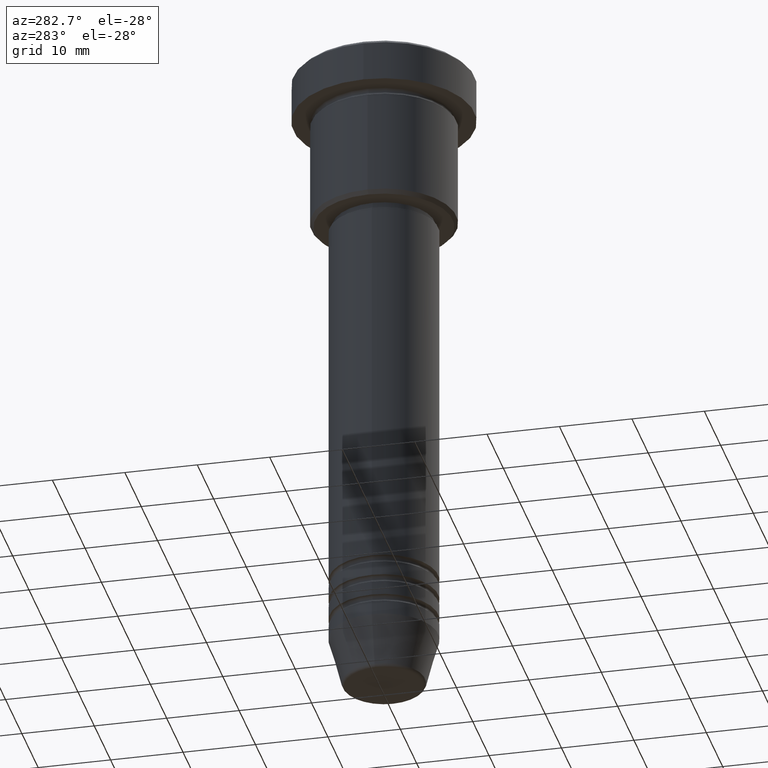
[diagram: clean part render]
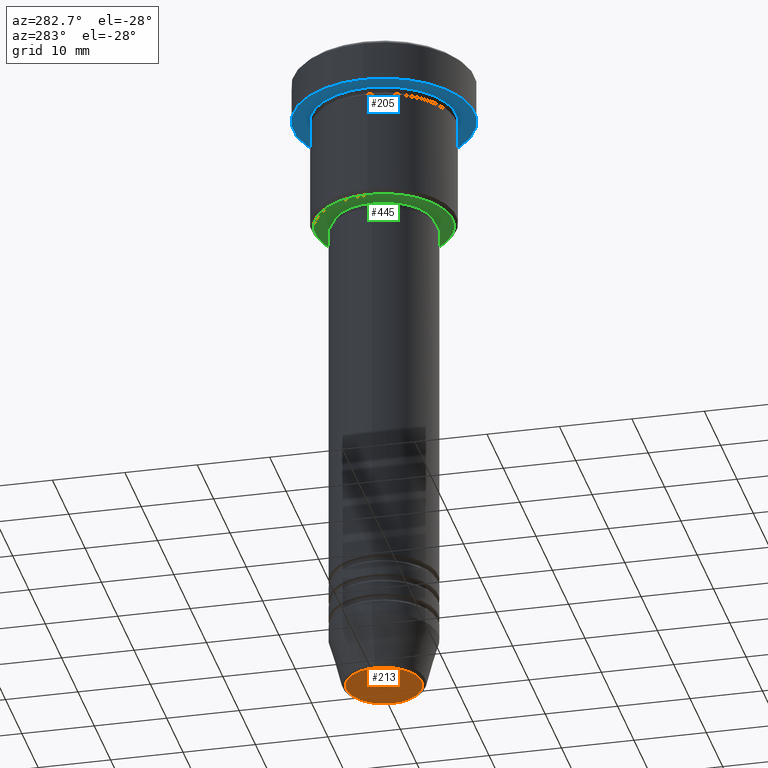
[diagram: same view with three faces highlighted in distinct colors, each labeled with its STEP entity id]
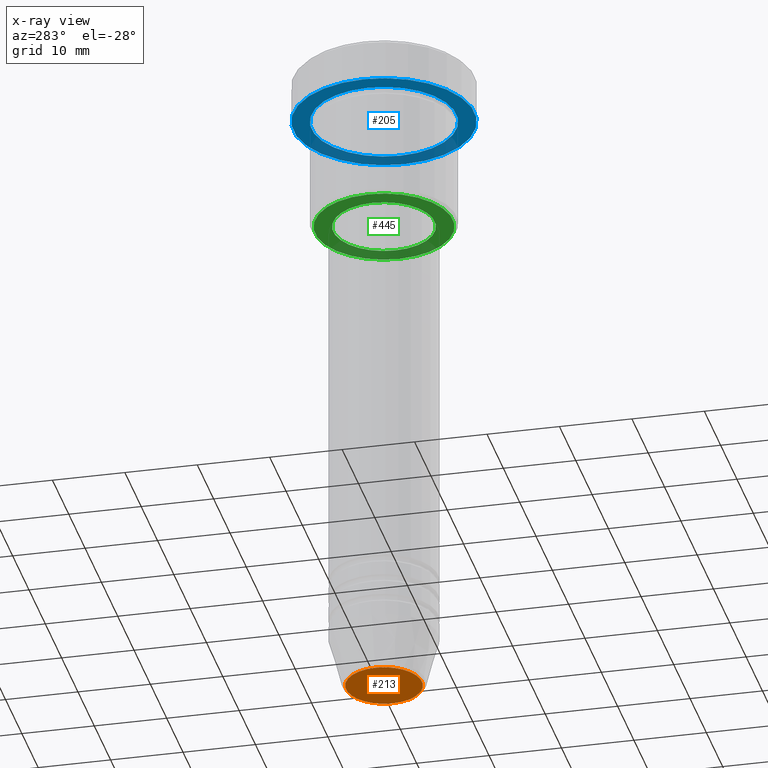
[diagram: x-ray of the same camera — body ghosted, the three highlighted faces saturated]
A machine part, auxiliary view with three faces highlighted in distinct colors.
The next image is the same camera in x-ray (body ghosted, the three faces saturated) — at least one of them is partly hidden behind the body in this view.
Their STEP definitions:

[orange] entity #213 — the highlighted planar face has unit normal (0, -0, 1).
#117 = EDGE_CURVE ( 'NONE', #859, #849, #162, .T. ) ;
#153 = DIRECTION ( 'NONE',  ( 0.000000000000000000, 0.000000000000000000, -1.000000000000000000 ) ) ;
#162 = CIRCLE ( 'NONE', #1095, 5.240692158992654726 ) ;
#213 = ADVANCED_FACE ( 'NONE', ( #1158 ), #1062, .F. ) ;
#253 = DIRECTION ( 'NONE',  ( 0.000000000000000000, 0.000000000000000000, -1.000000000000000000 ) ) ;
#347 = CARTESIAN_POINT ( 'NONE',  ( 5.240692158992654726, 0.000000000000000000, -92.00000000000000000 ) ) ;
#357 = CARTESIAN_POINT ( 'NONE',  ( 0.000000000000000000, 0.000000000000000000, -92.00000000000000000 ) ) ;
#413 = AXIS2_PLACEMENT_3D ( 'NONE', #902, #1078, #718 ) ;
#718 = DIRECTION ( 'NONE',  ( 1.000000000000000000, 0.000000000000000000, 0.000000000000000000 ) ) ;
#719 = CARTESIAN_POINT ( 'NONE',  ( -5.240692158992654726, 6.713726370671654515E-16, -92.00000000000000000 ) ) ;
#781 = ORIENTED_EDGE ( 'NONE', *, *, #826, .T. ) ;
#800 = DIRECTION ( 'NONE',  ( 1.000000000000000000, 0.000000000000000000, 0.000000000000000000 ) ) ;
#826 = EDGE_CURVE ( 'NONE', #849, #859, #850, .T. ) ;
#849 = VERTEX_POINT ( 'NONE', #347 ) ;
#850 = CIRCLE ( 'NONE', #1021, 5.240692158992654726 ) ;
#859 = VERTEX_POINT ( 'NONE', #719 ) ;
#902 = CARTESIAN_POINT ( 'NONE',  ( 0.000000000000000000, 0.000000000000000000, -92.00000000000000000 ) ) ;
#919 = ORIENTED_EDGE ( 'NONE', *, *, #117, .T. ) ;
#972 = DIRECTION ( 'NONE',  ( 1.000000000000000000, 0.000000000000000000, 0.000000000000000000 ) ) ;
#1021 = AXIS2_PLACEMENT_3D ( 'NONE', #1064, #153, #800 ) ;
#1062 = PLANE ( 'NONE',  #413 ) ;
#1064 = CARTESIAN_POINT ( 'NONE',  ( 0.000000000000000000, 0.000000000000000000, -92.00000000000000000 ) ) ;
#1078 = DIRECTION ( 'NONE',  ( 0.000000000000000000, -0.000000000000000000, 1.000000000000000000 ) ) ;
#1095 = AXIS2_PLACEMENT_3D ( 'NONE', #357, #253, #972 ) ;
#1113 = EDGE_LOOP ( 'NONE', ( #781, #919 ) ) ;
#1158 = FACE_OUTER_BOUND ( 'NONE', #1113, .T. ) ;

[blue] entity #205 — the highlighted planar face has unit normal (0, 0, -1).
#59 = VERTEX_POINT ( 'NONE', #675 ) ;
#64 = CARTESIAN_POINT ( 'NONE',  ( 0.000000000000000000, 0.000000000000000000, -5.999999999999996447 ) ) ;
#72 = DIRECTION ( 'NONE',  ( 0.000000000000000000, 0.000000000000000000, -1.000000000000000000 ) ) ;
#74 = AXIS2_PLACEMENT_3D ( 'NONE', #483, #1118, #119 ) ;
#80 = CARTESIAN_POINT ( 'NONE',  ( -12.50000000000000000, 1.530808498934191521E-15, -5.999999999999996447 ) ) ;
#119 = DIRECTION ( 'NONE',  ( -1.000000000000000000, 0.000000000000000000, 0.000000000000000000 ) ) ;
#124 = CIRCLE ( 'NONE', #456, 10.00000000000000000 ) ;
#205 = ADVANCED_FACE ( 'NONE', ( #617, #792 ), #270, .T. ) ;
#234 = DIRECTION ( 'NONE',  ( -0.000000000000000000, -0.000000000000000000, 1.000000000000000000 ) ) ;
#262 = CIRCLE ( 'NONE', #703, 12.50000000000000000 ) ;
#270 = PLANE ( 'NONE',  #584 ) ;
#305 = ORIENTED_EDGE ( 'NONE', *, *, #702, .F. ) ;
#308 = ORIENTED_EDGE ( 'NONE', *, *, #1091, .T. ) ;
#326 = DIRECTION ( 'NONE',  ( 1.000000000000000000, 0.000000000000000000, 0.000000000000000000 ) ) ;
#341 = CARTESIAN_POINT ( 'NONE',  ( 0.000000000000000000, 12.50000000000000000, -5.999999999999996447 ) ) ;
#348 = ORIENTED_EDGE ( 'NONE', *, *, #1066, .T. ) ;
#371 = AXIS2_PLACEMENT_3D ( 'NONE', #64, #234, #427 ) ;
#401 = VERTEX_POINT ( 'NONE', #754 ) ;
#416 = EDGE_LOOP ( 'NONE', ( #305, #1150 ) ) ;
#427 = DIRECTION ( 'NONE',  ( 1.000000000000000000, 0.000000000000000000, 0.000000000000000000 ) ) ;
#456 = AXIS2_PLACEMENT_3D ( 'NONE', #567, #1016, #1101 ) ;
#483 = CARTESIAN_POINT ( 'NONE',  ( 0.000000000000000000, 0.000000000000000000, -5.999999999999996447 ) ) ;
#567 = CARTESIAN_POINT ( 'NONE',  ( 0.000000000000000000, 0.000000000000000000, -5.999999999999996447 ) ) ;
#581 = EDGE_CURVE ( 'NONE', #879, #401, #795, .T. ) ;
#584 = AXIS2_PLACEMENT_3D ( 'NONE', #341, #72, #709 ) ;
#617 = FACE_BOUND ( 'NONE', #770, .T. ) ;
#675 = CARTESIAN_POINT ( 'NONE',  ( -10.00000000000000000, 0.000000000000000000, -5.999999999999996447 ) ) ;
#702 = EDGE_CURVE ( 'NONE', #401, #879, #262, .T. ) ;
#703 = AXIS2_PLACEMENT_3D ( 'NONE', #958, #939, #326 ) ;
#709 = DIRECTION ( 'NONE',  ( -1.000000000000000000, 0.000000000000000000, -0.000000000000000000 ) ) ;
#754 = CARTESIAN_POINT ( 'NONE',  ( 12.50000000000000000, 0.000000000000000000, -5.999999999999996447 ) ) ;
#765 = VERTEX_POINT ( 'NONE', #843 ) ;
#770 = EDGE_LOOP ( 'NONE', ( #308, #348 ) ) ;
#792 = FACE_OUTER_BOUND ( 'NONE', #416, .T. ) ;
#795 = CIRCLE ( 'NONE', #371, 12.50000000000000000 ) ;
#843 = CARTESIAN_POINT ( 'NONE',  ( 10.00000000000000000, 1.224646799147353256E-15, -5.999999999999996447 ) ) ;
#879 = VERTEX_POINT ( 'NONE', #80 ) ;
#939 = DIRECTION ( 'NONE',  ( -0.000000000000000000, -0.000000000000000000, 1.000000000000000000 ) ) ;
#958 = CARTESIAN_POINT ( 'NONE',  ( 0.000000000000000000, 0.000000000000000000, -5.999999999999996447 ) ) ;
#1016 = DIRECTION ( 'NONE',  ( -0.000000000000000000, -0.000000000000000000, 1.000000000000000000 ) ) ;
#1066 = EDGE_CURVE ( 'NONE', #765, #59, #124, .T. ) ;
#1091 = EDGE_CURVE ( 'NONE', #59, #765, #1099, .T. ) ;
#1099 = CIRCLE ( 'NONE', #74, 10.00000000000000000 ) ;
#1101 = DIRECTION ( 'NONE',  ( -1.000000000000000000, 0.000000000000000000, 0.000000000000000000 ) ) ;
#1118 = DIRECTION ( 'NONE',  ( -0.000000000000000000, -0.000000000000000000, 1.000000000000000000 ) ) ;
#1150 = ORIENTED_EDGE ( 'NONE', *, *, #581, .F. ) ;

[green] entity #445 — the highlighted planar face has unit normal (0, 0, -1).
#53 = AXIS2_PLACEMENT_3D ( 'NONE', #746, #917, #89 ) ;
#89 = DIRECTION ( 'NONE',  ( 1.000000000000000000, 0.000000000000000000, 0.000000000000000000 ) ) ;
#118 = FACE_OUTER_BOUND ( 'NONE', #143, .T. ) ;
#143 = EDGE_LOOP ( 'NONE', ( #1121, #844 ) ) ;
#144 = CIRCLE ( 'NONE', #987, 9.500000000000001776 ) ;
#185 = EDGE_CURVE ( 'NONE', #1126, #908, #846, .T. ) ;
#208 = FACE_BOUND ( 'NONE', #1180, .T. ) ;
#284 = CARTESIAN_POINT ( 'NONE',  ( 9.500000000000001776, 0.000000000000000000, -21.99999999999999645 ) ) ;
#294 = CARTESIAN_POINT ( 'NONE',  ( -6.999999999999999112, 8.572527594031472204E-16, -21.99999999999999645 ) ) ;
#322 = CARTESIAN_POINT ( 'NONE',  ( -9.500000000000001776, 1.194030629168669469E-15, -21.99999999999999645 ) ) ;
#331 = DIRECTION ( 'NONE',  ( 1.000000000000000000, 0.000000000000000000, 0.000000000000000000 ) ) ;
#363 = VERTEX_POINT ( 'NONE', #284 ) ;
#391 = DIRECTION ( 'NONE',  ( 0.000000000000000000, 0.000000000000000000, -1.000000000000000000 ) ) ;
#403 = DIRECTION ( 'NONE',  ( -1.000000000000000000, 0.000000000000000000, -0.000000000000000000 ) ) ;
#417 = CIRCLE ( 'NONE', #53, 6.999999999999999112 ) ;
#421 = PLANE ( 'NONE',  #1133 ) ;
#445 = ADVANCED_FACE ( 'NONE', ( #118, #208 ), #421, .T. ) ;
#453 = AXIS2_PLACEMENT_3D ( 'NONE', #524, #725, #331 ) ;
#473 = DIRECTION ( 'NONE',  ( -1.000000000000000000, 0.000000000000000000, 0.000000000000000000 ) ) ;
#478 = CARTESIAN_POINT ( 'NONE',  ( 0.000000000000000000, 0.000000000000000000, -21.99999999999999645 ) ) ;
#507 = ORIENTED_EDGE ( 'NONE', *, *, #959, .T. ) ;
#524 = CARTESIAN_POINT ( 'NONE',  ( 0.000000000000000000, 0.000000000000000000, -21.99999999999999645 ) ) ;
#539 = CARTESIAN_POINT ( 'NONE',  ( 6.999999999999999112, 0.000000000000000000, -21.99999999999999645 ) ) ;
#593 = VERTEX_POINT ( 'NONE', #322 ) ;
#647 = DIRECTION ( 'NONE',  ( 0.000000000000000000, 0.000000000000000000, -1.000000000000000000 ) ) ;
#662 = EDGE_CURVE ( 'NONE', #593, #363, #1042, .T. ) ;
#689 = CARTESIAN_POINT ( 'NONE',  ( 0.000000000000000000, 0.000000000000000000, -21.99999999999999645 ) ) ;
#725 = DIRECTION ( 'NONE',  ( -0.000000000000000000, -0.000000000000000000, 1.000000000000000000 ) ) ;
#746 = CARTESIAN_POINT ( 'NONE',  ( 0.000000000000000000, 0.000000000000000000, -21.99999999999999645 ) ) ;
#761 = CARTESIAN_POINT ( 'NONE',  ( 0.000000000000000000, 10.00000000000000000, -21.99999999999999645 ) ) ;
#762 = ORIENTED_EDGE ( 'NONE', *, *, #185, .T. ) ;
#844 = ORIENTED_EDGE ( 'NONE', *, *, #662, .T. ) ;
#846 = CIRCLE ( 'NONE', #453, 6.999999999999999112 ) ;
#908 = VERTEX_POINT ( 'NONE', #539 ) ;
#917 = DIRECTION ( 'NONE',  ( -0.000000000000000000, -0.000000000000000000, 1.000000000000000000 ) ) ;
#959 = EDGE_CURVE ( 'NONE', #908, #1126, #417, .T. ) ;
#987 = AXIS2_PLACEMENT_3D ( 'NONE', #478, #647, #473 ) ;
#1014 = EDGE_CURVE ( 'NONE', #363, #593, #144, .T. ) ;
#1042 = CIRCLE ( 'NONE', #1096, 9.500000000000001776 ) ;
#1052 = DIRECTION ( 'NONE',  ( -1.000000000000000000, 0.000000000000000000, 0.000000000000000000 ) ) ;
#1096 = AXIS2_PLACEMENT_3D ( 'NONE', #689, #391, #1052 ) ;
#1121 = ORIENTED_EDGE ( 'NONE', *, *, #1014, .T. ) ;
#1126 = VERTEX_POINT ( 'NONE', #294 ) ;
#1128 = DIRECTION ( 'NONE',  ( 0.000000000000000000, 0.000000000000000000, -1.000000000000000000 ) ) ;
#1133 = AXIS2_PLACEMENT_3D ( 'NONE', #761, #1128, #403 ) ;
#1180 = EDGE_LOOP ( 'NONE', ( #507, #762 ) ) ;